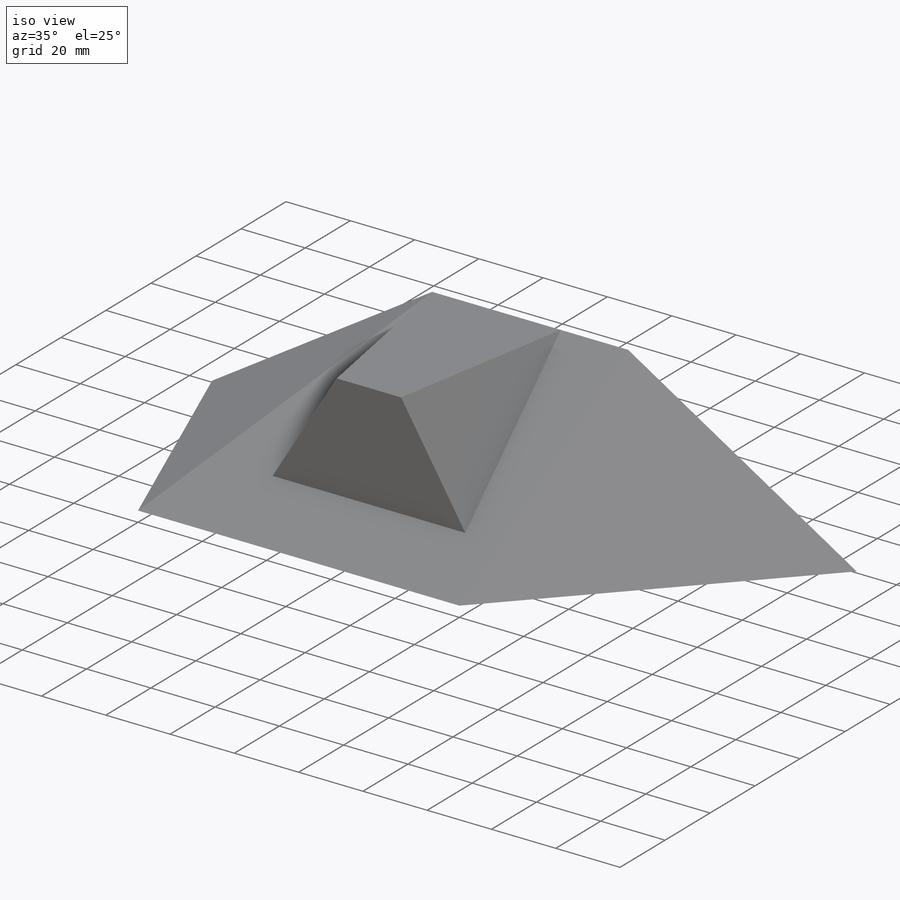
[diagram: iso view]
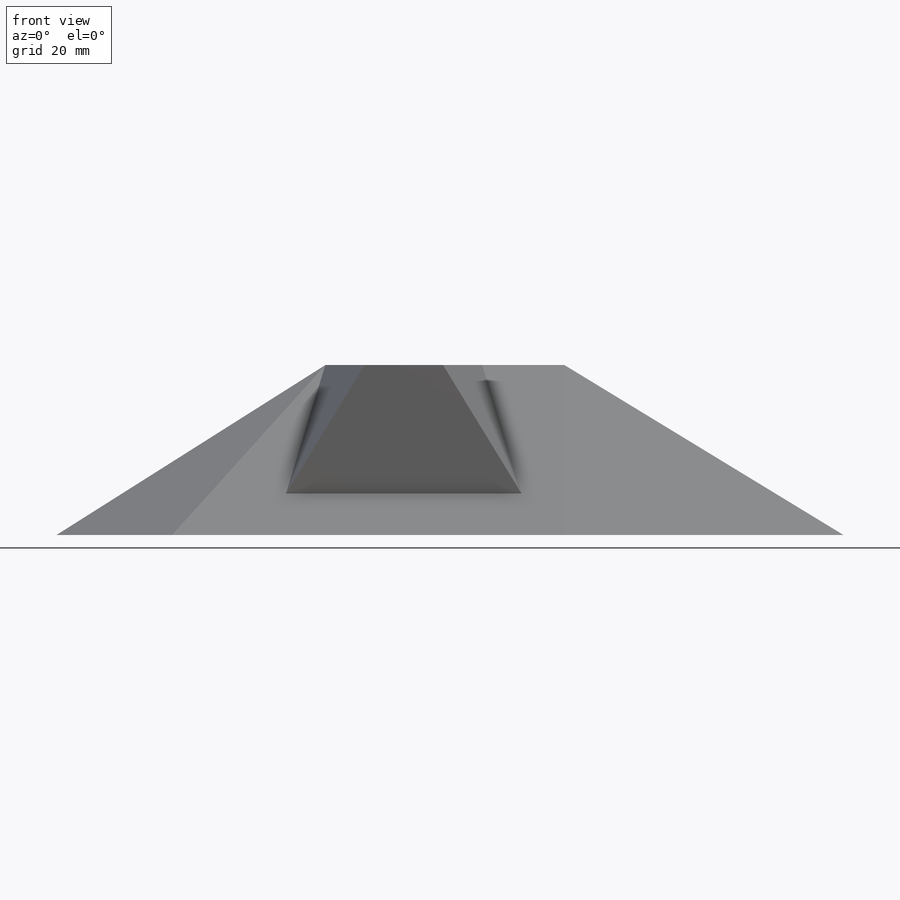
[diagram: front view]
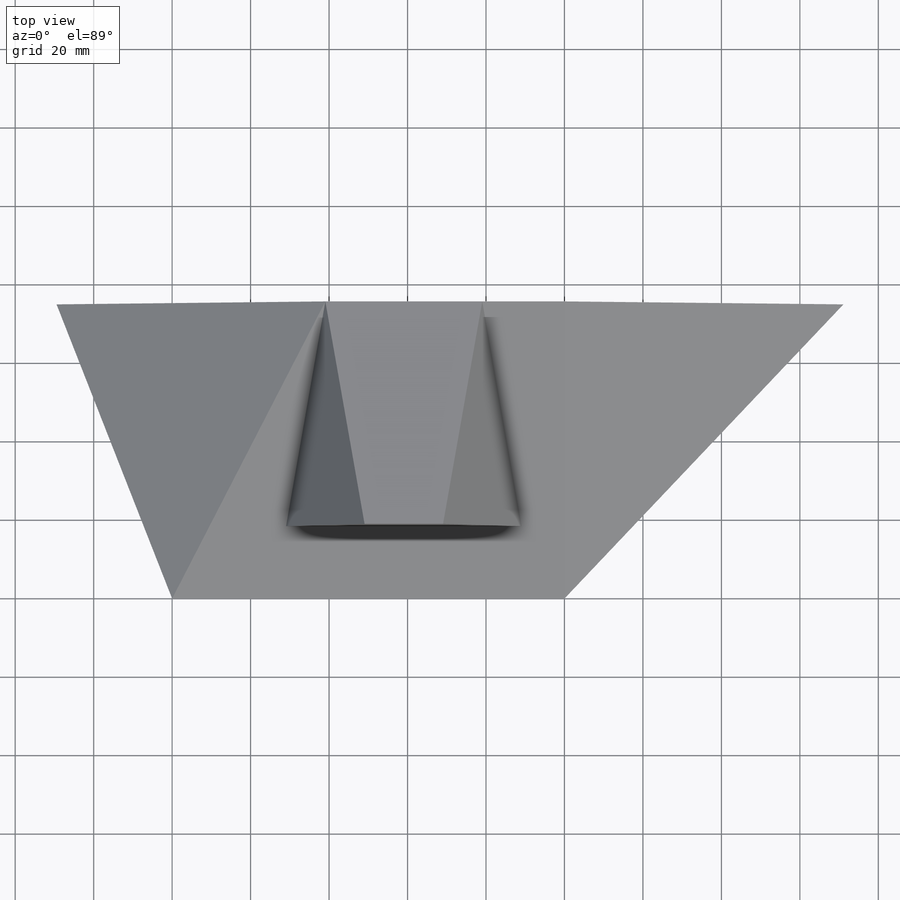
[diagram: top view]
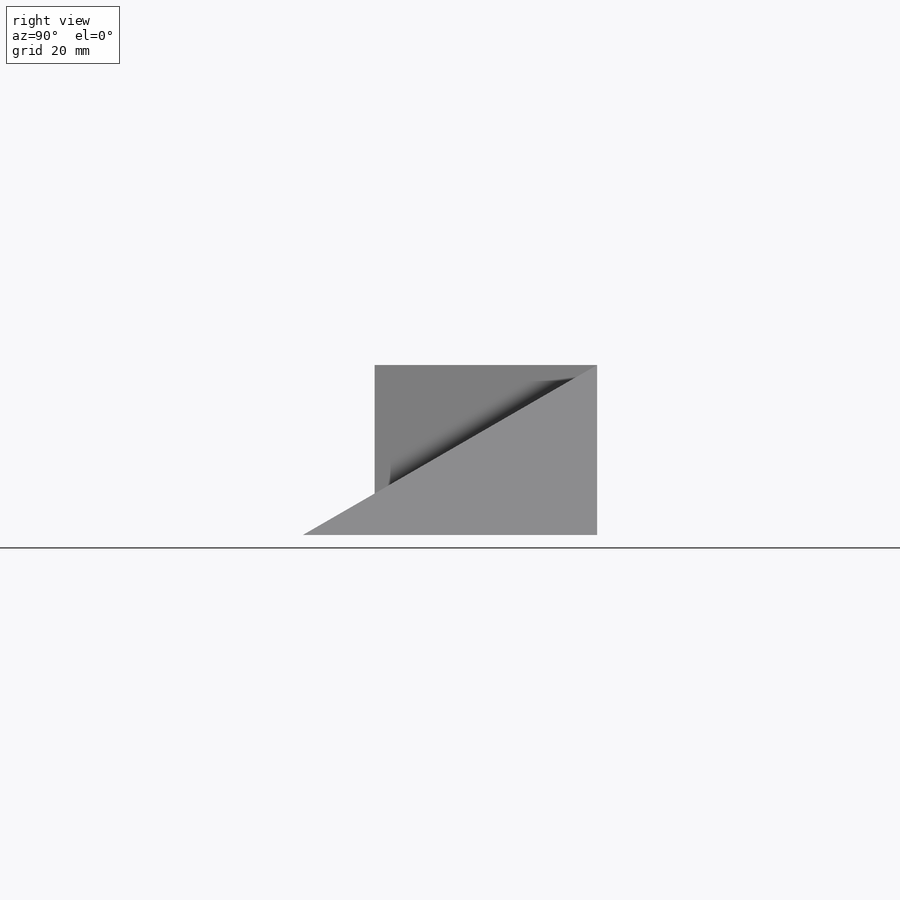
[diagram: right view]
SOLIDWORKS PART (.sldprt)
format: sldprt  version: not decoded by parser v0  size: 235,520 bytes
history: native  units: mm
features: sketch x7, extrude x2, material x1, cut_extrude x1, plane x1 (+16 scaffold rows collapsed)
feature tree (28):
  scaffold x16  (default folders/planes/origin — collapsed)
  material  "Material <not specified>"
  sketch  "Sketch1"  dims[D1=75.0mm D2=100.0mm D3=60.95mm]
  extrude  "Extrude1"  Depth=43.3mm
  sketch  "Sketch2"  dims[c1.D1=75.0mm c2.D1=~29.999272deg]
  cut_extrude  "Extrude2"  [1 undecoded]
  sketch  "Sketch3"  dims[D1=71.11mm]
  sketch  "Sketch4"  dims[D1=68.51mm]
  plane  "Plane2"
  sketch  "Sketch5"  dims[c1.D1=~47.726176mm c2.D1=80.0deg c2.D2=~20.225728mm c3.D2=80.0deg c3.D3=20.0mm c3.D4=56.71mm]
  extrude  "Extrude3"  [1 undecoded]
  sketch  "Sketch6"  dims[D1=20.0mm]
  sketch  "Sketch7"  dims[D1=20.0mm]
decode coverage: 8 of 10 modeling features carry decoded parameters
note: ~ marks probable driven/reference dimensions
note: 2 parameter values undecoded
note: suppression state not decoded; provenance and decode notes live in map.json
